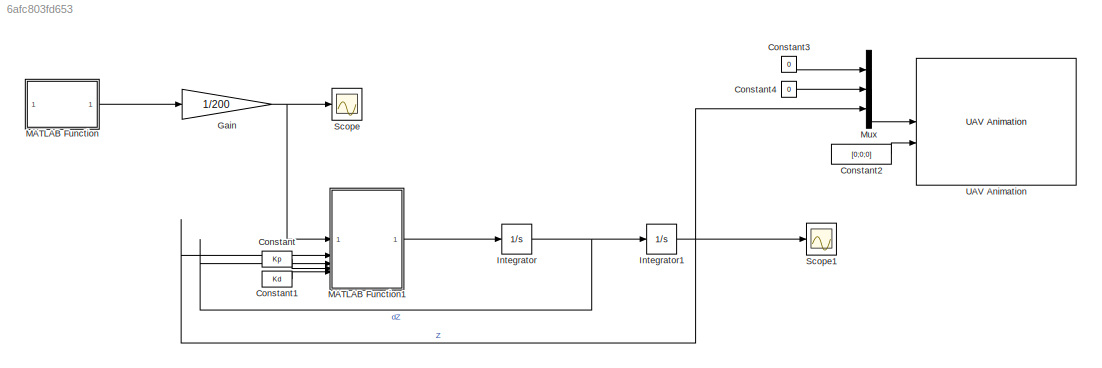
MODEL slx_6afc803fd653
KIND model
CONFIG AbsTol = auto
CONFIG EnableMultiTasking = off
CONFIG FixedStep = auto
CONFIG MaxStep = auto
CONFIG MinStep = auto
CONFIG RelTol = 1e-3
CONFIG SampleTimeConstraint = Unconstrained
CONFIG SolverName = VariableStepAuto
CONFIG StartTime = 0.0
CONFIG StopTime = simulation_time
BLOCK [Constant] Constant
  Value = Kp
BLOCK [Constant] Constant1
  Value = Kd
BLOCK [Constant] Constant2
  Value = [0;0;0]
BLOCK [Constant] Constant3
  Value = 0
BLOCK [Constant] Constant4
  Value = 0
BLOCK [Gain] Gain
  Gain = 1/200
BLOCK [Integrator] Integrator
  InitialCondition = initial_velocity
BLOCK [Integrator] Integrator1
  InitialCondition = initial_height
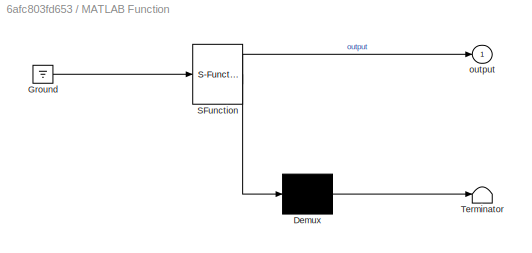
BLOCK [SubSystem] MATLAB Function
  ErrorFcn = Stateflow.Translate.translate
  PermitHierarchicalResolution = ExplicitOnly
  SFBlockType = MATLAB Function
  TreatAsAtomicUnit = on
BLOCK [Demux] MATLAB Function/ Demux 
  Outputs = 1
BLOCK [Ground] MATLAB Function/ Ground 
BLOCK [S-Function] MATLAB Function/ SFunction 
  EnableBusSupport = on
  FunctionName = sf_sfun
  PortCounts = [1 2]
  SFcnIsStateOwnerBlock = off
  SFunctionDeploymentMode = off
  Tag = Stateflow S-Function 2
BLOCK [Terminator] MATLAB Function/ Terminator 
BLOCK [Outport] MATLAB Function/output
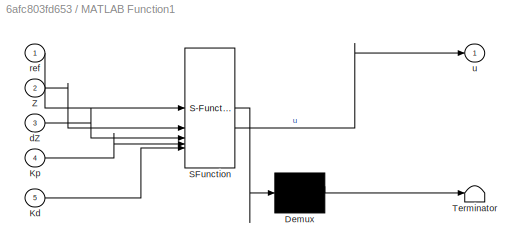
BLOCK [SubSystem] MATLAB Function1
  ErrorFcn = Stateflow.Translate.translate
  PermitHierarchicalResolution = ExplicitOnly
  SFBlockType = MATLAB Function
  TreatAsAtomicUnit = on
BLOCK [Demux] MATLAB Function1/ Demux 
  Outputs = 1
BLOCK [S-Function] MATLAB Function1/ SFunction 
  EnableBusSupport = on
  FunctionName = sf_sfun
  PortCounts = [5 2]
  SFcnIsStateOwnerBlock = off
  SFunctionDeploymentMode = off
  Tag = Stateflow S-Function 1
BLOCK [Terminator] MATLAB Function1/ Terminator 
BLOCK [Inport] MATLAB Function1/Kd
  Port = 5
BLOCK [Inport] MATLAB Function1/Kp
  Port = 4
BLOCK [Inport] MATLAB Function1/Z
  Port = 2
BLOCK [Inport] MATLAB Function1/dZ
  Port = 3
BLOCK [Inport] MATLAB Function1/ref
BLOCK [Outport] MATLAB Function1/u
BLOCK [Mux] Mux
  DisplayOption = bar
  Inputs = 3
BLOCK [Scope] Scope
  Floating = off
  NumInputPorts = 1
  ScopeSpecificationString = Simulink.scopes.TimeScopeBlockCfg('CurrentConfiguration', extmgr.ConfigurationSet(extmgr.Configuration('Core','General UI',true),extmgr.Configuration('Core','Source UI',true),extmgr.Configuration('Sources','WiredSimulink',true),extmgr.Configuration('Visuals','Time Domain',true,'SerializedDisplays',{struct('MinYLimReal','-0.15875','MaxYLimReal','1.42875','YLabelReal','Altitude (m)','MinYLimMag','0....<+1573ch>
BLOCK [Scope] Scope1
  Floating = off
  NumInputPorts = 1
  ScopeSpecificationString = Simulink.scopes.TimeScopeBlockCfg('CurrentConfiguration', extmgr.ConfigurationSet(extmgr.Configuration('Core','General UI',true),extmgr.Configuration('Core','Source UI',true),extmgr.Configuration('Sources','WiredSimulink',true,'DataLoggingVariableName','ScopeData1'),extmgr.Configuration('Visuals','Time Domain',true,'SerializedDisplays',{struct('MinYLimReal','-0.18715','MaxYLimReal','1.68439','YLab...<+1593ch>
BLOCK [Reference] UAV Animation  REF=uavutilslib/UAV Animation
  SourceBlock = uavutilslib/UAV Animation
  SourceType = uav.sluav.internal.system.UAVAnimation
LINE Constant1:1 -> MATLAB Function1:5
LINE Constant2:1 -> UAV Animation:2
LINE Constant3:1 -> Mux:1
LINE Constant4:1 -> Mux:2
LINE Constant:1 -> MATLAB Function1:4
NET Gain:1 -> MATLAB Function1:1, Scope:1
NET Integrator1:1 -> MATLAB Function1:2, Mux:3, Scope1:1
NET Integrator:1 -> Integrator1:1, MATLAB Function1:3
LINE MATLAB Function1:1 -> Integrator:1
LINE MATLAB Function:1 -> Gain:1
LINE Mux:1 -> UAV Animation:1
note: NET lines group one-source signal fan-out (src -> all destinations, sorted); 1:1 wires keep LINE
CHART MATLAB Function1 states=1 transitions=1
  STATE_LABEL 'eML_blk_kernel()'
  STATE_LABEL 'SCRIPT:\nfunction u = fcn(ref, Z, dZ, Kp, Kd)\n\nu = Kp * (ref - Z) + Kd * (0 - dZ);\n'
CHART MATLAB Function states=1 transitions=1
  STATE_LABEL 'eML_blk_kernel()'
  STATE_LABEL "SCRIPT:\nfunction output = getData()\n    output = 0;\n    coder.extrinsic('evalin');\n    data = evalin('base', 'reference');\n    output = data; % 输出最新值\nend\n"
CHART  states=0 transitions=0
CHART  states=0 transitions=0
